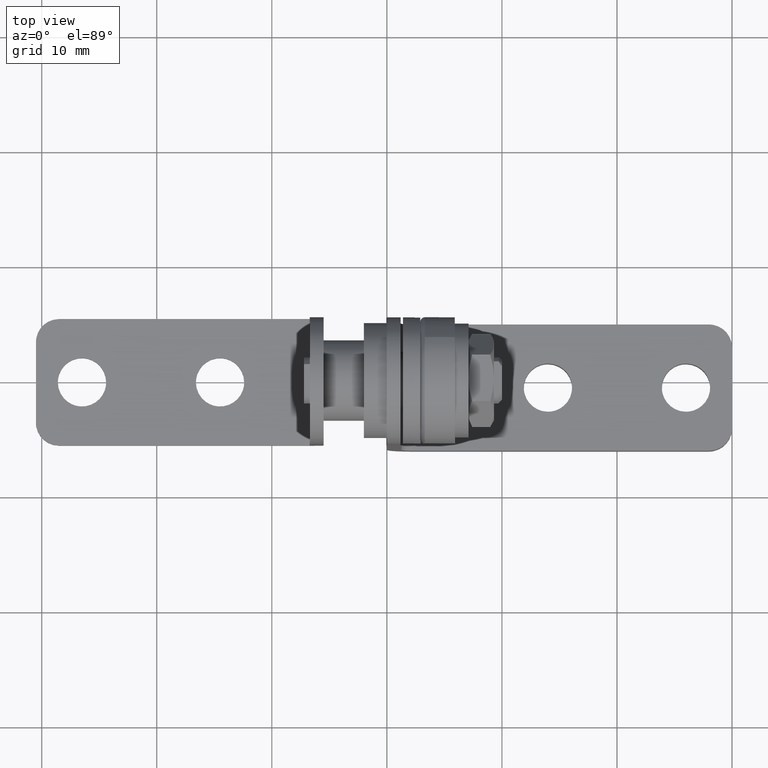
[diagram: clean part render]
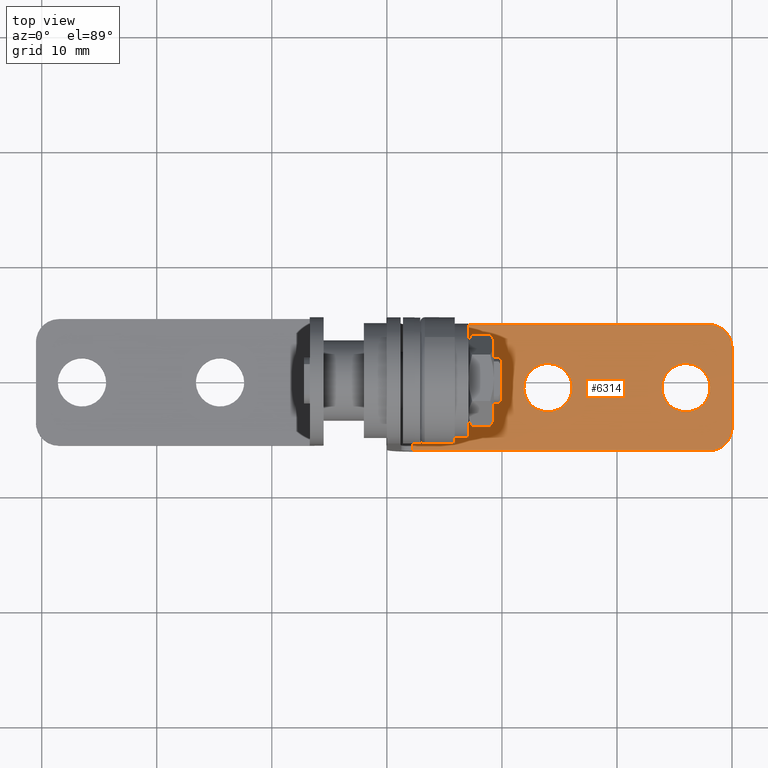
[diagram: same view with one face highlighted and labeled with its STEP entity id]
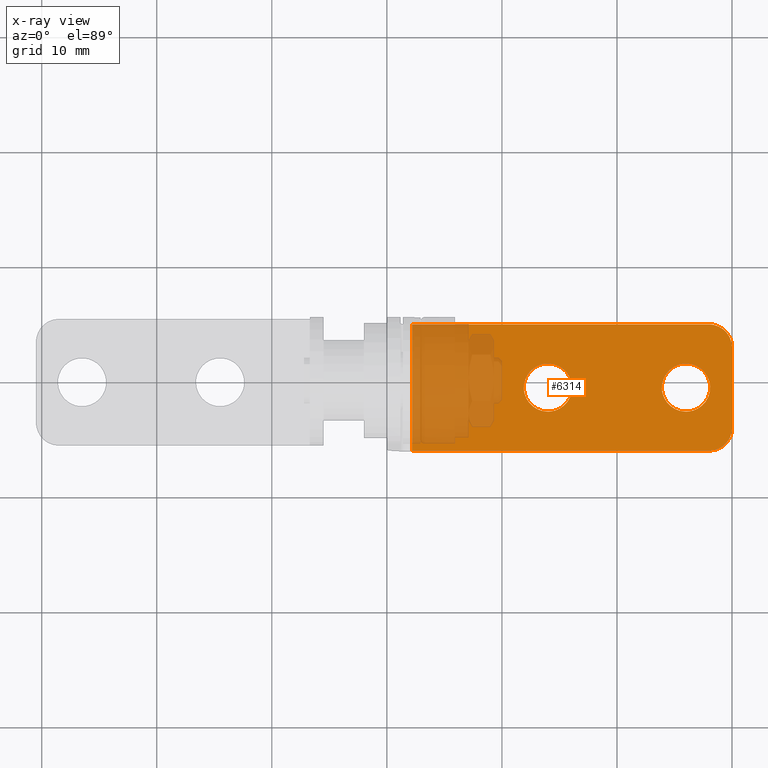
[diagram: x-ray of the same camera — body ghosted, the highlighted face saturated]
A machine part, top view. The second image highlights one B-rep face of the part: STEP entity #6314.
The next image is the same camera in x-ray: the body ghosted, the highlighted face saturated — about 26% of this face is hidden behind the body in this view.
In plain terms, the highlighted face is a freeform B-spline surface patch.
Its self-contained STEP definition (entity closure, byte-faithful):
#5451=CARTESIAN_POINT('',(16.096083076684781,-0.332530178189653,-8.794649476598192));
#5452=VERTEX_POINT('',#5451);
#5453=CARTESIAN_POINT('',(14.0,-2.557678437922512,-8.678034397730068));
#5454=VERTEX_POINT('',#5453);
#5455=CARTESIAN_POINT('',(16.096083076684778,-0.332530178189652,-8.794649476598194));
#5456=CARTESIAN_POINT('',(16.100000000000005,-0.396483542152044,-8.791297822815244));
#5457=CARTESIAN_POINT('',(16.100000000000001,-0.460556414937907,-8.787939905840251));
#5458=CARTESIAN_POINT('',(16.100000000000005,-2.557678437922511,-8.678034397730070));
#5459=CARTESIAN_POINT('',(14.0,-2.557678437922512,-8.678034397730068));
#5467=(BOUNDED_CURVE()B_SPLINE_CURVE(2,(#5455,#5456,#5457,#5458,#5459),.UNSPECIFIED.,.F.,.U.)B_SPLINE_CURVE_WITH_KNOTS((3,2,3),(0.239332962240430,0.250000000000000,0.500000000000000),.UNSPECIFIED.)CURVE()GEOMETRIC_REPRESENTATION_ITEM()RATIONAL_B_SPLINE_CURVE((0.976072041669905,0.987502787901580,1.0,0.707106781186548,1.0))REPRESENTATION_ITEM(''));
#5468=EDGE_CURVE('',#5452,#5454,#5467,.T.);
#5509=CARTESIAN_POINT('',(11.903916923315220,-0.588582651686163,-8.781230335082309));
#5510=VERTEX_POINT('',#5509);
#5516=CARTESIAN_POINT('',(14.0,-2.557678437922512,-8.678034397730068));
#5517=CARTESIAN_POINT('',(12.024517259515685,-2.557678437922513,-8.678034397730070));
#5518=CARTESIAN_POINT('',(11.903916923315228,-0.588582651686162,-8.781230335082308));
#5526=(BOUNDED_CURVE()B_SPLINE_CURVE(2,(#5516,#5517,#5518),.UNSPECIFIED.,.F.,.U.)B_SPLINE_CURVE_WITH_KNOTS((3,3),(0.500000000000000,0.739332962240430),.UNSPECIFIED.)CURVE()GEOMETRIC_REPRESENTATION_ITEM()RATIONAL_B_SPLINE_CURVE((1.0,0.719603993284968,0.976072041669905))REPRESENTATION_ITEM(''));
#5527=EDGE_CURVE('',#5454,#5510,#5526,.T.);
#5550=CARTESIAN_POINT('',(14.0,1.636565608046698,-8.897845413950433));
#5551=VERTEX_POINT('',#5550);
#5552=CARTESIAN_POINT('',(14.0,1.636565608046698,-8.897845413950433));
#5553=CARTESIAN_POINT('',(15.975482740484326,1.636565608046699,-8.897845413950433));
#5554=CARTESIAN_POINT('',(16.096083076684778,-0.332530178189653,-8.794649476598192));
#5562=(BOUNDED_CURVE()B_SPLINE_CURVE(2,(#5552,#5553,#5554),.UNSPECIFIED.,.F.,.U.)B_SPLINE_CURVE_WITH_KNOTS((3,3),(0.0,0.239332962240430),.UNSPECIFIED.)CURVE()GEOMETRIC_REPRESENTATION_ITEM()RATIONAL_B_SPLINE_CURVE((1.0,0.719603993284968,0.976072041669905))REPRESENTATION_ITEM(''));
#5563=EDGE_CURVE('',#5551,#5452,#5562,.T.);
#5565=CARTESIAN_POINT('',(11.903916923315228,-0.588582651686162,-8.781230335082308));
#5566=CARTESIAN_POINT('',(11.900000000000000,-0.524629287723770,-8.784581988865257));
#5567=CARTESIAN_POINT('',(11.900000000000000,-0.460556414937907,-8.787939905840251));
#5568=CARTESIAN_POINT('',(11.900000000000000,1.636565608046699,-8.897845413950433));
#5569=CARTESIAN_POINT('',(14.0,1.636565608046698,-8.897845413950433));
#5577=(BOUNDED_CURVE()B_SPLINE_CURVE(2,(#5565,#5566,#5567,#5568,#5569),.UNSPECIFIED.,.F.,.U.)B_SPLINE_CURVE_WITH_KNOTS((3,2,3),(0.739332962240430,0.750000000000000,1.0),.UNSPECIFIED.)CURVE()GEOMETRIC_REPRESENTATION_ITEM()RATIONAL_B_SPLINE_CURVE((0.976072041669905,0.987502787901580,1.0,0.707106781186548,1.0))REPRESENTATION_ITEM(''));
#5578=EDGE_CURVE('',#5510,#5551,#5577,.T.);
#5633=CARTESIAN_POINT('',(28.096083076684781,-0.332530178189652,-8.794649476598192));
#5634=VERTEX_POINT('',#5633);
#5635=CARTESIAN_POINT('',(26.0,-2.557678437922512,-8.678034397730068));
#5636=VERTEX_POINT('',#5635);
#5637=CARTESIAN_POINT('',(28.096083076684778,-0.332530178189652,-8.794649476598194));
#5638=CARTESIAN_POINT('',(28.099999999999998,-0.396483542152044,-8.791297822815244));
#5639=CARTESIAN_POINT('',(28.100000000000001,-0.460556414937907,-8.787939905840251));
#5640=CARTESIAN_POINT('',(28.100000000000001,-2.557678437922511,-8.678034397730070));
#5641=CARTESIAN_POINT('',(26.0,-2.557678437922512,-8.678034397730068));
#5649=(BOUNDED_CURVE()B_SPLINE_CURVE(2,(#5637,#5638,#5639,#5640,#5641),.UNSPECIFIED.,.F.,.U.)B_SPLINE_CURVE_WITH_KNOTS((3,2,3),(0.239332962240430,0.250000000000000,0.500000000000000),.UNSPECIFIED.)CURVE()GEOMETRIC_REPRESENTATION_ITEM()RATIONAL_B_SPLINE_CURVE((0.976072041669905,0.987502787901580,1.0,0.707106781186548,1.0))REPRESENTATION_ITEM(''));
#5650=EDGE_CURVE('',#5634,#5636,#5649,.T.);
#5691=CARTESIAN_POINT('',(23.903916923315219,-0.588582651686163,-8.781230335082309));
#5692=VERTEX_POINT('',#5691);
#5698=CARTESIAN_POINT('',(26.0,-2.557678437922512,-8.678034397730068));
#5699=CARTESIAN_POINT('',(24.024517259515687,-2.557678437922513,-8.678034397730070));
#5700=CARTESIAN_POINT('',(23.903916923315226,-0.588582651686162,-8.781230335082308));
#5708=(BOUNDED_CURVE()B_SPLINE_CURVE(2,(#5698,#5699,#5700),.UNSPECIFIED.,.F.,.U.)B_SPLINE_CURVE_WITH_KNOTS((3,3),(0.500000000000000,0.739332962240430),.UNSPECIFIED.)CURVE()GEOMETRIC_REPRESENTATION_ITEM()RATIONAL_B_SPLINE_CURVE((1.0,0.719603993284968,0.976072041669905))REPRESENTATION_ITEM(''));
#5709=EDGE_CURVE('',#5636,#5692,#5708,.T.);
#5732=CARTESIAN_POINT('',(26.0,1.636565608046698,-8.897845413950433));
#5733=VERTEX_POINT('',#5732);
#5734=CARTESIAN_POINT('',(26.0,1.636565608046698,-8.897845413950433));
#5735=CARTESIAN_POINT('',(27.975482740484320,1.636565608046699,-8.897845413950433));
#5736=CARTESIAN_POINT('',(28.096083076684774,-0.332530178189653,-8.794649476598192));
#5744=(BOUNDED_CURVE()B_SPLINE_CURVE(2,(#5734,#5735,#5736),.UNSPECIFIED.,.F.,.U.)B_SPLINE_CURVE_WITH_KNOTS((3,3),(0.0,0.239332962240430),.UNSPECIFIED.)CURVE()GEOMETRIC_REPRESENTATION_ITEM()RATIONAL_B_SPLINE_CURVE((1.0,0.719603993284968,0.976072041669905))REPRESENTATION_ITEM(''));
#5745=EDGE_CURVE('',#5733,#5634,#5744,.T.);
#5747=CARTESIAN_POINT('',(23.903916923315226,-0.588582651686162,-8.781230335082308));
#5748=CARTESIAN_POINT('',(23.900000000000002,-0.524629287723770,-8.784581988865257));
#5749=CARTESIAN_POINT('',(23.899999999999999,-0.460556414937907,-8.787939905840251));
#5750=CARTESIAN_POINT('',(23.899999999999991,1.636565608046699,-8.897845413950433));
#5751=CARTESIAN_POINT('',(26.0,1.636565608046698,-8.897845413950433));
#5759=(BOUNDED_CURVE()B_SPLINE_CURVE(2,(#5747,#5748,#5749,#5750,#5751),.UNSPECIFIED.,.F.,.U.)B_SPLINE_CURVE_WITH_KNOTS((3,2,3),(0.739332962240430,0.750000000000000,1.0),.UNSPECIFIED.)CURVE()GEOMETRIC_REPRESENTATION_ITEM()RATIONAL_B_SPLINE_CURVE((0.976072041669905,0.987502787901580,1.0,0.707106781186548,1.0))REPRESENTATION_ITEM(''));
#5760=EDGE_CURVE('',#5692,#5733,#5759,.T.);
#6055=CARTESIAN_POINT('',(28.0,-5.953018856088070,-8.500092146504160));
#6056=VERTEX_POINT('',#6055);
#6057=CARTESIAN_POINT('',(30.0,-3.955759786578920,-8.604764058990050));
#6058=VERTEX_POINT('',#6057);
#6059=CARTESIAN_POINT('',(28.0,-5.953018856088067,-8.500092146504162));
#6060=CARTESIAN_POINT('',(30.000000000000004,-5.953018856088067,-8.500092146504162));
#6061=CARTESIAN_POINT('',(30.0,-3.955759786578920,-8.604764058990050));
#6069=(BOUNDED_CURVE()B_SPLINE_CURVE(2,(#6059,#6060,#6061),.UNSPECIFIED.,.F.,.U.)CURVE()GEOMETRIC_REPRESENTATION_ITEM()QUASI_UNIFORM_CURVE()RATIONAL_B_SPLINE_CURVE((1.0,0.707106781186548,1.0))REPRESENTATION_ITEM(''));
#6070=EDGE_CURVE('',#6056,#6058,#6069,.T.);
#6133=CARTESIAN_POINT('',(28.0,5.031906026212180,-9.075787665176529));
#6134=VERTEX_POINT('',#6133);
#6140=CARTESIAN_POINT('',(30.0,3.034646956703030,-8.971115752690649));
#6141=VERTEX_POINT('',#6140);
#6142=CARTESIAN_POINT('',(30.0,3.034646956703030,-8.971115752690649));
#6143=CARTESIAN_POINT('',(30.000000000000004,5.031906026212178,-9.075787665176538));
#6144=CARTESIAN_POINT('',(28.0,5.031906026212178,-9.075787665176538));
#6152=(BOUNDED_CURVE()B_SPLINE_CURVE(2,(#6142,#6143,#6144),.UNSPECIFIED.,.F.,.U.)CURVE()GEOMETRIC_REPRESENTATION_ITEM()QUASI_UNIFORM_CURVE()RATIONAL_B_SPLINE_CURVE((1.0,0.707106781186548,1.0))REPRESENTATION_ITEM(''));
#6153=EDGE_CURVE('',#6141,#6134,#6152,.T.);
#6238=CARTESIAN_POINT('',(2.200000000000000,-5.953018856088070,-8.500092146504160));
#6239=VERTEX_POINT('',#6238);
#6253=CARTESIAN_POINT('',(2.200000000000000,5.031906026212180,-9.075787665176529));
#6254=VERTEX_POINT('',#6253);
#6255=CARTESIAN_POINT('',(2.200000000000000,5.031906026212180,-9.075787665176529));
#6256=CARTESIAN_POINT('',(2.200000000000000,-5.953018856088070,-8.500092146504160));
#6257=QUASI_UNIFORM_CURVE('',1,(#6255,#6256),.UNSPECIFIED.,.F.,.U.);
#6258=EDGE_CURVE('',#6254,#6239,#6257,.T.);
#6277=CARTESIAN_POINT('',(0.811390053881792,-6.501715832668051,-8.471336156462286));
#6278=CARTESIAN_POINT('',(0.811390053881792,5.580603297430806,-9.104543670659773));
#6279=CARTESIAN_POINT('',(31.388610691772310,-6.501715832668051,-8.471336156462286));
#6280=CARTESIAN_POINT('',(31.388610691772310,5.580603297430806,-9.104543670659773));
#6281=B_SPLINE_SURFACE_WITH_KNOTS('',1,1,((#6277,#6279),(#6278,#6280)),.UNSPECIFIED.,.F.,.F.,.U.,(2,2),(2,2),(0.0,12.098900252402650),(0.0,30.577220637890520),.UNSPECIFIED.);
#6282=CARTESIAN_POINT('',(30.0,-3.955759786578920,-8.604764058990050));
#6283=CARTESIAN_POINT('',(30.0,3.034646956703030,-8.971115752690649));
#6284=QUASI_UNIFORM_CURVE('',1,(#6282,#6283),.UNSPECIFIED.,.F.,.U.);
#6285=EDGE_CURVE('',#6058,#6141,#6284,.T.);
#6286=ORIENTED_EDGE('',*,*,#6285,.T.);
#6287=ORIENTED_EDGE('',*,*,#6153,.T.);
#6288=CARTESIAN_POINT('',(2.200000000000000,5.031906026212180,-9.075787665176529));
#6289=CARTESIAN_POINT('',(28.0,5.031906026212180,-9.075787665176529));
#6290=QUASI_UNIFORM_CURVE('',1,(#6288,#6289),.UNSPECIFIED.,.F.,.U.);
#6291=EDGE_CURVE('',#6254,#6134,#6290,.T.);
#6292=ORIENTED_EDGE('',*,*,#6291,.F.);
#6293=ORIENTED_EDGE('',*,*,#6258,.T.);
#6294=CARTESIAN_POINT('',(2.200000000000000,-5.953018856088070,-8.500092146504160));
#6295=CARTESIAN_POINT('',(28.0,-5.953018856088070,-8.500092146504160));
#6296=QUASI_UNIFORM_CURVE('',1,(#6294,#6295),.UNSPECIFIED.,.F.,.U.);
#6297=EDGE_CURVE('',#6239,#6056,#6296,.T.);
#6298=ORIENTED_EDGE('',*,*,#6297,.T.);
#6299=ORIENTED_EDGE('',*,*,#6070,.T.);
#6300=EDGE_LOOP('',(#6286,#6287,#6292,#6293,#6298,#6299));
#6301=FACE_OUTER_BOUND('',#6300,.T.);
#6302=ORIENTED_EDGE('',*,*,#5709,.T.);
#6303=ORIENTED_EDGE('',*,*,#5760,.T.);
#6304=ORIENTED_EDGE('',*,*,#5745,.T.);
#6305=ORIENTED_EDGE('',*,*,#5650,.T.);
#6306=EDGE_LOOP('',(#6302,#6303,#6304,#6305));
#6307=FACE_BOUND('',#6306,.T.);
#6308=ORIENTED_EDGE('',*,*,#5527,.T.);
#6309=ORIENTED_EDGE('',*,*,#5578,.T.);
#6310=ORIENTED_EDGE('',*,*,#5563,.T.);
#6311=ORIENTED_EDGE('',*,*,#5468,.T.);
#6312=EDGE_LOOP('',(#6308,#6309,#6310,#6311));
#6313=FACE_BOUND('',#6312,.T.);
#6314=ADVANCED_FACE('',(#6301,#6307,#6313),#6281,.F.);